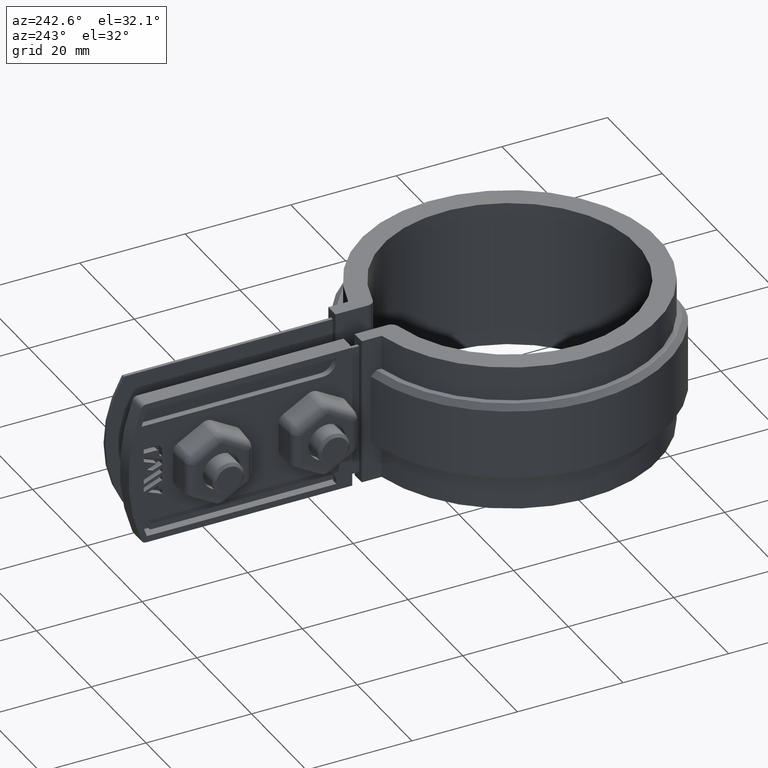
[diagram: clean part render]
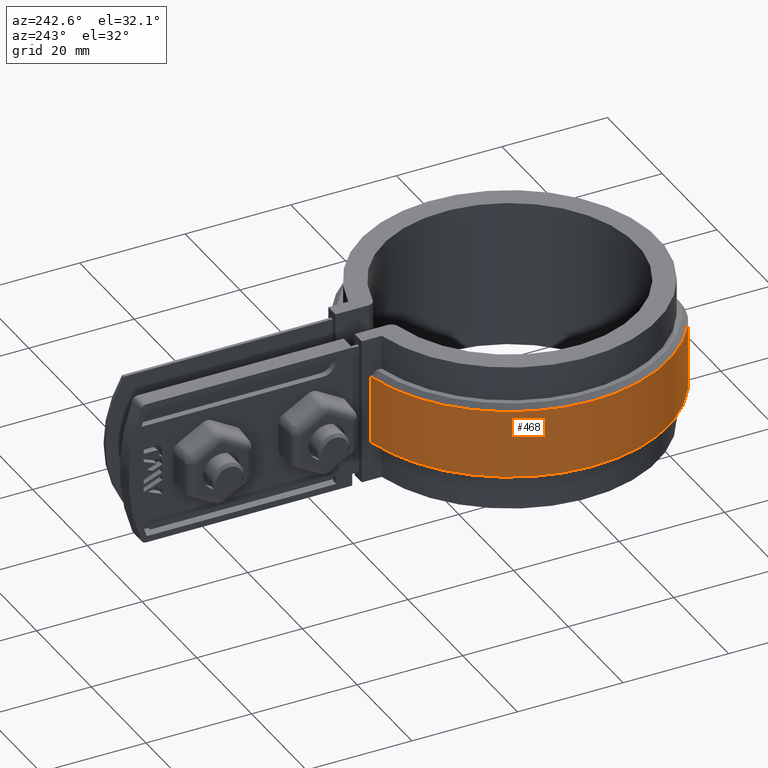
[diagram: same view with one face highlighted and labeled with its STEP entity id]
A machine part, auxiliary view. The second image highlights one B-rep face of the part: STEP entity #468.
In plain terms, the highlighted cylindrical surface (partial cylindrical patch) has radius 30.095 mm, axis along (0, 0, -1).
Its self-contained STEP definition (entity closure, byte-faithful):
#468 = ADVANCED_FACE( '', ( #948 ), #949, .T. );
#948 = FACE_OUTER_BOUND( '', #2266, .T. );
#949 = CYLINDRICAL_SURFACE( '', #2267, 30.0950000000000 );
#2266 = EDGE_LOOP( '', ( #4868, #4869, #4870, #4871 ) );
#2267 = AXIS2_PLACEMENT_3D( '', #4872, #4873, #4874 );
#4868 = ORIENTED_EDGE( '', *, *, #7485, .F. );
#4869 = ORIENTED_EDGE( '', *, *, #7505, .T. );
#4870 = ORIENTED_EDGE( '', *, *, #7506, .T. );
#4871 = ORIENTED_EDGE( '', *, *, #7507, .T. );
#4872 = CARTESIAN_POINT( '', ( 8.67361737988404E-016, 0.000000000000000, -20.0000000000000 ) );
#4873 = DIRECTION( '', ( 0.000000000000000, 0.000000000000000, -1.00000000000000 ) );
#4874 = DIRECTION( '', ( 0.190592010331802, 0.981669336180815, 0.000000000000000 ) );
#7485 = EDGE_CURVE( '', #8703, #8705, #8706, .T. );
#7505 = EDGE_CURVE( '', #8703, #8739, #8740, .F. );
#7506 = EDGE_CURVE( '', #8739, #8741, #8742, .T. );
#7507 = EDGE_CURVE( '', #8741, #8705, #8743, .T. );
#8703 = VERTEX_POINT( '', #12156 );
#8705 = VERTEX_POINT( '', #12161 );
#8706 = LINE( '', #12162, #12163 );
#8739 = VERTEX_POINT( '', #12218 );
#8740 = CIRCLE( '', #12219, 30.0950000000000 );
#8741 = VERTEX_POINT( '', #12220 );
#8742 = LINE( '', #12221, #12222 );
#8743 = CIRCLE( '', #12223, 30.0950000000000 );
#12156 = CARTESIAN_POINT( '', ( -6.09999999999999, 29.4703075145137, -19.0000000000000 ) );
#12161 = CARTESIAN_POINT( '', ( -6.09999999999999, 29.4703075145137, -6.00000000000000 ) );
#12162 = CARTESIAN_POINT( '', ( -6.09999999999999, 29.4703075145137, -20.0000000000000 ) );
#12163 = VECTOR( '', #14102, 1000.00000000000 );
#12218 = CARTESIAN_POINT( '', ( -15.9728671526465, -25.5064019399818, -19.0000000000000 ) );
#12219 = AXIS2_PLACEMENT_3D( '', #14131, #14132, #14133 );
#12220 = CARTESIAN_POINT( '', ( -15.9728671526465, -25.5064019399818, -6.00000000000000 ) );
#12221 = CARTESIAN_POINT( '', ( -15.9728671526465, -25.5064019399818, -20.0000000000000 ) );
#12222 = VECTOR( '', #14134, 1000.00000000000 );
#12223 = AXIS2_PLACEMENT_3D( '', #14135, #14136, #14137 );
#14102 = DIRECTION( '', ( 0.000000000000000, 0.000000000000000, 1.00000000000000 ) );
#14131 = CARTESIAN_POINT( '', ( 8.67361737988404E-016, 0.000000000000000, -19.0000000000000 ) );
#14132 = DIRECTION( '', ( 0.000000000000000, 0.000000000000000, -1.00000000000000 ) );
#14133 = DIRECTION( '', ( -1.00000000000000, 0.000000000000000, 0.000000000000000 ) );
#14134 = DIRECTION( '', ( 0.000000000000000, 0.000000000000000, 1.00000000000000 ) );
#14135 = CARTESIAN_POINT( '', ( 8.67361737988404E-016, 0.000000000000000, -6.00000000000000 ) );
#14136 = DIRECTION( '', ( 0.000000000000000, 0.000000000000000, -1.00000000000000 ) );
#14137 = DIRECTION( '', ( -1.00000000000000, 0.000000000000000, 0.000000000000000 ) );